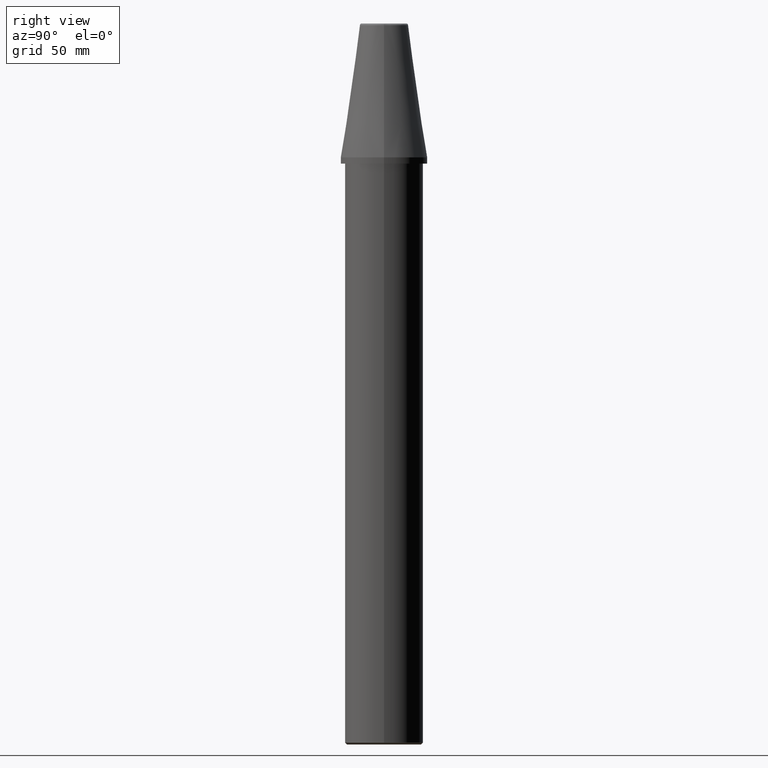
[diagram: clean part render]
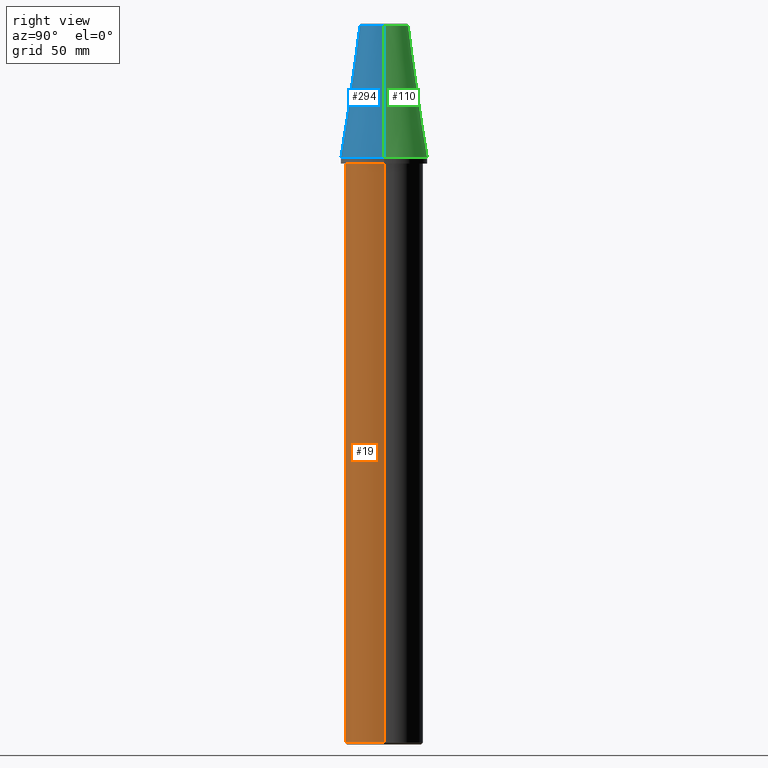
[diagram: same view with three faces highlighted in distinct colors, each labeled with its STEP entity id]
A machine part, right view with three faces highlighted in distinct colors.
Their STEP definitions:

[orange] entity #19 — the highlighted cylindrical surface (partial cylindrical patch) has radius 20 mm, axis along (0, 0, 1).
#6 = AXIS2_PLACEMENT_3D ( 'NONE', #60, #62, #65 ) ;
#19 = ADVANCED_FACE ( 'NONE', ( #40 ), #325, .T. ) ;
#23 = CARTESIAN_POINT ( 'NONE',  ( -20.00000000000000000, 2.449293598294706500E-015, -3.200000000000008200 ) ) ;
#33 = EDGE_CURVE ( 'NONE', #115, #116, #287, .T. ) ;
#40 = FACE_OUTER_BOUND ( 'NONE', #238, .T. ) ;
#59 = LINE ( 'NONE', #166, #190 ) ;
#60 = CARTESIAN_POINT ( 'NONE',  ( 0.0000000000000000000, 0.0000000000000000000, -298.9999999999999400 ) ) ;
#62 = DIRECTION ( 'NONE',  ( 0.0000000000000000000, 0.0000000000000000000, 1.000000000000000000 ) ) ;
#65 = DIRECTION ( 'NONE',  ( 1.000000000000000000, 0.0000000000000000000, 0.0000000000000000000 ) ) ;
#70 = CARTESIAN_POINT ( 'NONE',  ( 0.0000000000000000000, 0.0000000000000000000, -3.200000000000008200 ) ) ;
#72 = DIRECTION ( 'NONE',  ( -0.0000000000000000000, -0.0000000000000000000, -1.000000000000000000 ) ) ;
#73 = DIRECTION ( 'NONE',  ( 1.000000000000000000, 0.0000000000000000000, 0.0000000000000000000 ) ) ;
#89 = DIRECTION ( 'NONE',  ( 0.0000000000000000000, 0.0000000000000000000, 1.000000000000000000 ) ) ;
#115 = VERTEX_POINT ( 'NONE', #400 ) ;
#116 = VERTEX_POINT ( 'NONE', #385 ) ;
#161 = VERTEX_POINT ( 'NONE', #223 ) ;
#166 = CARTESIAN_POINT ( 'NONE',  ( -20.00000000000000000, 2.449293598294706500E-015, 75.00849435290182000 ) ) ;
#174 = VECTOR ( 'NONE', #361, 1000.000000000000000 ) ;
#175 = CIRCLE ( 'NONE', #6, 20.00000000000000000 ) ;
#190 = VECTOR ( 'NONE', #89, 1000.000000000000000 ) ;
#211 = ORIENTED_EDGE ( 'NONE', *, *, #285, .T. ) ;
#223 = CARTESIAN_POINT ( 'NONE',  ( -20.00000000000000000, 2.449293598294706500E-015, -298.9999999999999400 ) ) ;
#238 = EDGE_LOOP ( 'NONE', ( #418, #275, #253, #211 ) ) ;
#253 = ORIENTED_EDGE ( 'NONE', *, *, #33, .T. ) ;
#264 = VERTEX_POINT ( 'NONE', #23 ) ;
#275 = ORIENTED_EDGE ( 'NONE', *, *, #283, .T. ) ;
#283 = EDGE_CURVE ( 'NONE', #161, #115, #175, .T. ) ;
#285 = EDGE_CURVE ( 'NONE', #116, #264, #371, .T. ) ;
#287 = LINE ( 'NONE', #334, #174 ) ;
#293 = AXIS2_PLACEMENT_3D ( 'NONE', #330, #339, #358 ) ;
#325 = CYLINDRICAL_SURFACE ( 'NONE', #293, 20.00000000000000000 ) ;
#330 = CARTESIAN_POINT ( 'NONE',  ( 0.0000000000000000000, 0.0000000000000000000, 75.00849435290182000 ) ) ;
#334 = CARTESIAN_POINT ( 'NONE',  ( 20.00000000000000000, 0.0000000000000000000, 75.00849435290182000 ) ) ;
#336 = EDGE_CURVE ( 'NONE', #161, #264, #59, .T. ) ;
#339 = DIRECTION ( 'NONE',  ( 0.0000000000000000000, 0.0000000000000000000, 1.000000000000000000 ) ) ;
#358 = DIRECTION ( 'NONE',  ( 1.000000000000000000, 0.0000000000000000000, 0.0000000000000000000 ) ) ;
#361 = DIRECTION ( 'NONE',  ( 0.0000000000000000000, 0.0000000000000000000, 1.000000000000000000 ) ) ;
#371 = CIRCLE ( 'NONE', #431, 20.00000000000000000 ) ;
#385 = CARTESIAN_POINT ( 'NONE',  ( 20.00000000000000000, 0.0000000000000000000, -3.200000000000008200 ) ) ;
#400 = CARTESIAN_POINT ( 'NONE',  ( 20.00000000000000000, 0.0000000000000000000, -298.9999999999999400 ) ) ;
#418 = ORIENTED_EDGE ( 'NONE', *, *, #336, .F. ) ;
#431 = AXIS2_PLACEMENT_3D ( 'NONE', #70, #72, #73 ) ;

[blue] entity #294 — the highlighted conical surface has half-angle 8.297 deg.
#3 = EDGE_LOOP ( 'NONE', ( #4, #210, #168, #8 ) ) ;
#4 = ORIENTED_EDGE ( 'NONE', *, *, #221, .F. ) ;
#8 = ORIENTED_EDGE ( 'NONE', *, *, #244, .F. ) ;
#13 = CARTESIAN_POINT ( 'NONE',  ( -22.22499999999999400, 0.0000000000000000000, 0.0000000000000000000 ) ) ;
#52 = CIRCLE ( 'NONE', #117, 12.37469537611110200 ) ;
#55 = DIRECTION ( 'NONE',  ( 0.0000000000000000000, 0.0000000000000000000, -1.000000000000000000 ) ) ;
#56 = DIRECTION ( 'NONE',  ( -1.000000000000000000, 0.0000000000000000000, 0.0000000000000000000 ) ) ;
#66 = CARTESIAN_POINT ( 'NONE',  ( 0.0000000000000000000, 0.0000000000000000000, 0.0000000000000000000 ) ) ;
#75 = CARTESIAN_POINT ( 'NONE',  ( 12.37469537611110200, 2.118620309691396900E-015, 67.54430822726730800 ) ) ;
#88 = AXIS2_PLACEMENT_3D ( 'NONE', #415, #408, #340 ) ;
#101 = DIRECTION ( 'NONE',  ( 0.1443082272673069900, 1.767266086135363000E-017, -0.9895327864921743500 ) ) ;
#102 = CARTESIAN_POINT ( 'NONE',  ( 22.22499999999999400, 2.721777511104992100E-015, 0.0000000000000000000 ) ) ;
#112 = VECTOR ( 'NONE', #170, 1000.000000000000000 ) ;
#114 = VERTEX_POINT ( 'NONE', #387 ) ;
#117 = AXIS2_PLACEMENT_3D ( 'NONE', #137, #121, #120 ) ;
#120 = DIRECTION ( 'NONE',  ( -1.000000000000000000, 0.0000000000000000000, 0.0000000000000000000 ) ) ;
#121 = DIRECTION ( 'NONE',  ( 0.0000000000000000000, 0.0000000000000000000, -1.000000000000000000 ) ) ;
#137 = CARTESIAN_POINT ( 'NONE',  ( 0.0000000000000000000, 0.0000000000000000000, 67.54430822726730800 ) ) ;
#139 = VERTEX_POINT ( 'NONE', #375 ) ;
#141 = VECTOR ( 'NONE', #101, 1000.000000000000000 ) ;
#148 = FACE_OUTER_BOUND ( 'NONE', #3, .T. ) ;
#168 = ORIENTED_EDGE ( 'NONE', *, *, #240, .T. ) ;
#170 = DIRECTION ( 'NONE',  ( -0.1443082272673069900, 0.0000000000000000000, -0.9895327864921743500 ) ) ;
#210 = ORIENTED_EDGE ( 'NONE', *, *, #214, .T. ) ;
#214 = EDGE_CURVE ( 'NONE', #296, #114, #52, .T. ) ;
#221 = EDGE_CURVE ( 'NONE', #296, #416, #347, .T. ) ;
#231 = CIRCLE ( 'NONE', #88, 22.22500000000000100 ) ;
#237 = CARTESIAN_POINT ( 'NONE',  ( 22.22499999999999400, 2.721777511104992100E-015, 0.0000000000000000000 ) ) ;
#240 = EDGE_CURVE ( 'NONE', #114, #139, #304, .T. ) ;
#244 = EDGE_CURVE ( 'NONE', #416, #139, #231, .T. ) ;
#294 = ADVANCED_FACE ( 'NONE', ( #148 ), #312, .T. ) ;
#296 = VERTEX_POINT ( 'NONE', #75 ) ;
#304 = LINE ( 'NONE', #13, #112 ) ;
#312 = CONICAL_SURFACE ( 'NONE', #429, 22.22499999999999400, 0.1448138465474190000 ) ;
#340 = DIRECTION ( 'NONE',  ( 1.000000000000000000, 0.0000000000000000000, 0.0000000000000000000 ) ) ;
#347 = LINE ( 'NONE', #102, #141 ) ;
#375 = CARTESIAN_POINT ( 'NONE',  ( -22.22499999999999400, 0.0000000000000000000, 0.0000000000000000000 ) ) ;
#387 = CARTESIAN_POINT ( 'NONE',  ( -12.37469537611110200, 0.0000000000000000000, 67.54430822726730800 ) ) ;
#408 = DIRECTION ( 'NONE',  ( -0.0000000000000000000, -0.0000000000000000000, -1.000000000000000000 ) ) ;
#415 = CARTESIAN_POINT ( 'NONE',  ( 0.0000000000000000000, 0.0000000000000000000, 0.0000000000000000000 ) ) ;
#416 = VERTEX_POINT ( 'NONE', #237 ) ;
#429 = AXIS2_PLACEMENT_3D ( 'NONE', #66, #55, #56 ) ;

[green] entity #110 — the highlighted conical surface has half-angle 8.297 deg.
#13 = CARTESIAN_POINT ( 'NONE',  ( -22.22499999999999400, 0.0000000000000000000, 0.0000000000000000000 ) ) ;
#47 = CIRCLE ( 'NONE', #128, 22.22500000000000100 ) ;
#63 = EDGE_CURVE ( 'NONE', #114, #296, #268, .T. ) ;
#75 = CARTESIAN_POINT ( 'NONE',  ( 12.37469537611110200, 2.118620309691396900E-015, 67.54430822726730800 ) ) ;
#99 = FACE_OUTER_BOUND ( 'NONE', #397, .T. ) ;
#101 = DIRECTION ( 'NONE',  ( 0.1443082272673069900, 1.767266086135363000E-017, -0.9895327864921743500 ) ) ;
#102 = CARTESIAN_POINT ( 'NONE',  ( 22.22499999999999400, 2.721777511104992100E-015, 0.0000000000000000000 ) ) ;
#110 = ADVANCED_FACE ( 'NONE', ( #99 ), #243, .T. ) ;
#112 = VECTOR ( 'NONE', #170, 1000.000000000000000 ) ;
#114 = VERTEX_POINT ( 'NONE', #387 ) ;
#128 = AXIS2_PLACEMENT_3D ( 'NONE', #204, #202, #192 ) ;
#136 = AXIS2_PLACEMENT_3D ( 'NONE', #191, #383, #403 ) ;
#139 = VERTEX_POINT ( 'NONE', #375 ) ;
#141 = VECTOR ( 'NONE', #101, 1000.000000000000000 ) ;
#165 = EDGE_CURVE ( 'NONE', #139, #416, #47, .T. ) ;
#170 = DIRECTION ( 'NONE',  ( -0.1443082272673069900, 0.0000000000000000000, -0.9895327864921743500 ) ) ;
#191 = CARTESIAN_POINT ( 'NONE',  ( 0.0000000000000000000, 0.0000000000000000000, 0.0000000000000000000 ) ) ;
#192 = DIRECTION ( 'NONE',  ( 1.000000000000000000, 0.0000000000000000000, 0.0000000000000000000 ) ) ;
#202 = DIRECTION ( 'NONE',  ( -0.0000000000000000000, -0.0000000000000000000, -1.000000000000000000 ) ) ;
#204 = CARTESIAN_POINT ( 'NONE',  ( 0.0000000000000000000, 0.0000000000000000000, 0.0000000000000000000 ) ) ;
#221 = EDGE_CURVE ( 'NONE', #296, #416, #347, .T. ) ;
#237 = CARTESIAN_POINT ( 'NONE',  ( 22.22499999999999400, 2.721777511104992100E-015, 0.0000000000000000000 ) ) ;
#240 = EDGE_CURVE ( 'NONE', #114, #139, #304, .T. ) ;
#243 = CONICAL_SURFACE ( 'NONE', #136, 22.22499999999999400, 0.1448138465474190000 ) ;
#249 = ORIENTED_EDGE ( 'NONE', *, *, #63, .T. ) ;
#262 = ORIENTED_EDGE ( 'NONE', *, *, #240, .F. ) ;
#265 = AXIS2_PLACEMENT_3D ( 'NONE', #410, #402, #395 ) ;
#266 = ORIENTED_EDGE ( 'NONE', *, *, #221, .T. ) ;
#268 = CIRCLE ( 'NONE', #265, 12.37469537611110200 ) ;
#296 = VERTEX_POINT ( 'NONE', #75 ) ;
#304 = LINE ( 'NONE', #13, #112 ) ;
#347 = LINE ( 'NONE', #102, #141 ) ;
#366 = ORIENTED_EDGE ( 'NONE', *, *, #165, .F. ) ;
#375 = CARTESIAN_POINT ( 'NONE',  ( -22.22499999999999400, 0.0000000000000000000, 0.0000000000000000000 ) ) ;
#383 = DIRECTION ( 'NONE',  ( 0.0000000000000000000, 0.0000000000000000000, -1.000000000000000000 ) ) ;
#387 = CARTESIAN_POINT ( 'NONE',  ( -12.37469537611110200, 0.0000000000000000000, 67.54430822726730800 ) ) ;
#395 = DIRECTION ( 'NONE',  ( -1.000000000000000000, 0.0000000000000000000, 0.0000000000000000000 ) ) ;
#397 = EDGE_LOOP ( 'NONE', ( #249, #266, #366, #262 ) ) ;
#402 = DIRECTION ( 'NONE',  ( 0.0000000000000000000, 0.0000000000000000000, -1.000000000000000000 ) ) ;
#403 = DIRECTION ( 'NONE',  ( -1.000000000000000000, 0.0000000000000000000, 0.0000000000000000000 ) ) ;
#410 = CARTESIAN_POINT ( 'NONE',  ( 0.0000000000000000000, 0.0000000000000000000, 67.54430822726730800 ) ) ;
#416 = VERTEX_POINT ( 'NONE', #237 ) ;